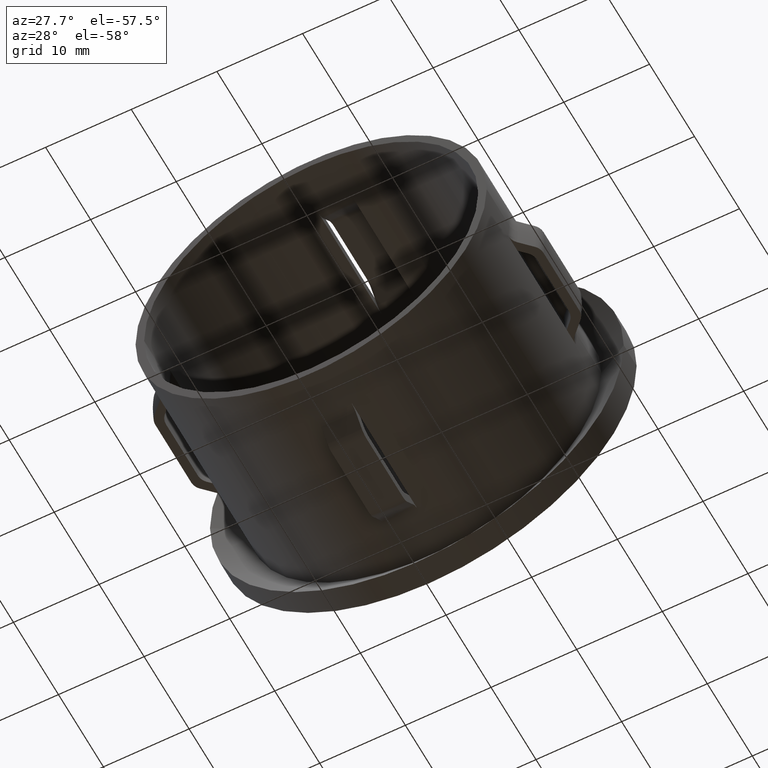
[diagram: clean part render]
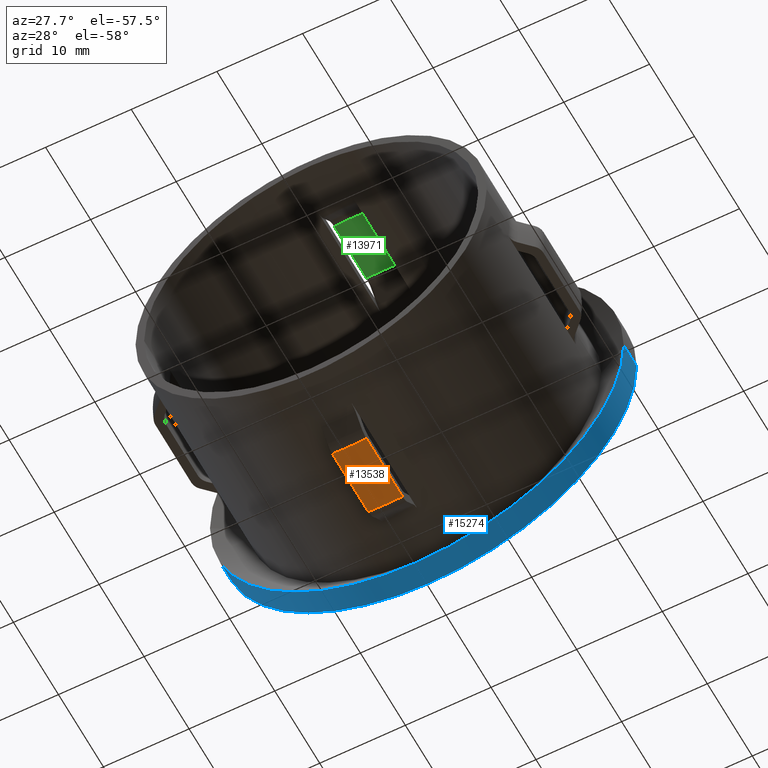
[diagram: same view with three faces highlighted in distinct colors, each labeled with its STEP entity id]
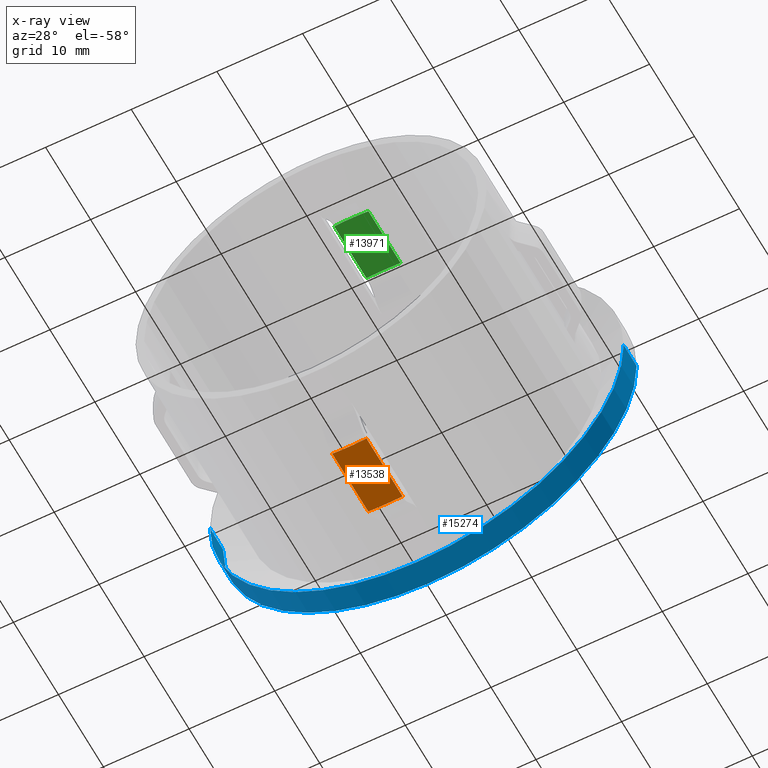
[diagram: x-ray of the same camera — body ghosted, the three highlighted faces saturated]
A machine part, auxiliary view with three faces highlighted in distinct colors.
The next image is the same camera in x-ray (body ghosted, the three faces saturated) — at least one of them is partly hidden behind the body in this view.
Their STEP definitions:

[orange] entity #13538 — the highlighted cylindrical surface (partial cylindrical patch) has radius 22.75 mm, axis along (-0, -1, -0).
#708 = ORIENTED_EDGE ( 'NONE', *, *, #13850, .T. ) ;
#1042 = DIRECTION ( 'NONE',  ( 1.000000000000000000, -2.897560091741472400E-015, 0.0000000000000000000 ) ) ;
#1842 = ORIENTED_EDGE ( 'NONE', *, *, #8058, .F. ) ;
#2649 = CIRCLE ( 'NONE', #16215, 22.75000000000006000 ) ;
#2795 = CARTESIAN_POINT ( 'NONE',  ( 2.000000000000002700, 20.00000000000000000, -22.66191739460727200 ) ) ;
#2892 = CARTESIAN_POINT ( 'NONE',  ( -1.999999999999997100, 20.00000000000000000, -22.66191739460728600 ) ) ;
#3248 = CARTESIAN_POINT ( 'NONE',  ( 0.0000000000000000000, 30.10000000000000100, 0.0000000000000000000 ) ) ;
#3481 = VECTOR ( 'NONE', #15312, 1000.000000000000000 ) ;
#4722 = LINE ( 'NONE', #2795, #16508 ) ;
#4914 = VERTEX_POINT ( 'NONE', #5137 ) ;
#4971 = DIRECTION ( 'NONE',  ( -2.904862207577519400E-015, -1.000000000000000000, -0.0000000000000000000 ) ) ;
#5137 = CARTESIAN_POINT ( 'NONE',  ( -1.999999999999997300, 8.507359312880781800, -22.66191739460728600 ) ) ;
#5251 = VERTEX_POINT ( 'NONE', #13236 ) ;
#6612 = DIRECTION ( 'NONE',  ( -2.449293598294745400E-017, -1.000000000000000000, -0.0000000000000000000 ) ) ;
#6787 = CARTESIAN_POINT ( 'NONE',  ( 2.000000000000002700, 16.50735931288072000, -22.66191739460727200 ) ) ;
#7039 = CARTESIAN_POINT ( 'NONE',  ( -3.948474823319314900E-014, 16.50735931288078400, 0.0000000000000000000 ) ) ;
#7125 = DIRECTION ( 'NONE',  ( 1.000000000000000000, -2.897560091741473600E-015, 0.0000000000000000000 ) ) ;
#7164 = ORIENTED_EDGE ( 'NONE', *, *, #14776, .T. ) ;
#7397 = CARTESIAN_POINT ( 'NONE',  ( -1.999999999999997100, 16.50735931288072000, -22.66191739460728600 ) ) ;
#7982 = AXIS2_PLACEMENT_3D ( 'NONE', #3248, #16383, #7125 ) ;
#8058 = EDGE_CURVE ( 'NONE', #4914, #5251, #2649, .T. ) ;
#8813 = ORIENTED_EDGE ( 'NONE', *, *, #13176, .F. ) ;
#9596 = DIRECTION ( 'NONE',  ( 1.000000000000000000, -2.897560091741474800E-015, 0.0000000000000000000 ) ) ;
#11536 = CIRCLE ( 'NONE', #16838, 22.75000000000003900 ) ;
#11993 = EDGE_LOOP ( 'NONE', ( #1842, #8813, #7164, #708 ) ) ;
#12205 = DIRECTION ( 'NONE',  ( -2.904862207577519400E-015, -1.000000000000000000, -0.0000000000000000000 ) ) ;
#12693 = CARTESIAN_POINT ( 'NONE',  ( -6.272364589381328600E-014, 8.507359312880787200, 0.0000000000000000000 ) ) ;
#12798 = FACE_OUTER_BOUND ( 'NONE', #11993, .T. ) ;
#13176 = EDGE_CURVE ( 'NONE', #15128, #4914, #14464, .T. ) ;
#13236 = CARTESIAN_POINT ( 'NONE',  ( 2.000000000000002200, 8.507359312880781800, -22.66191739460727200 ) ) ;
#13538 = ADVANCED_FACE ( 'NONE', ( #12798 ), #15273, .T. ) ;
#13850 = EDGE_CURVE ( 'NONE', #17016, #5251, #4722, .T. ) ;
#14464 = LINE ( 'NONE', #2892, #3481 ) ;
#14776 = EDGE_CURVE ( 'NONE', #15128, #17016, #11536, .T. ) ;
#15128 = VERTEX_POINT ( 'NONE', #7397 ) ;
#15273 = CYLINDRICAL_SURFACE ( 'NONE', #7982, 22.75000000000005000 ) ;
#15312 = DIRECTION ( 'NONE',  ( -2.449293598294745400E-017, -1.000000000000000000, -0.0000000000000000000 ) ) ;
#16215 = AXIS2_PLACEMENT_3D ( 'NONE', #12693, #4971, #1042 ) ;
#16383 = DIRECTION ( 'NONE',  ( -2.904862207577519400E-015, -1.000000000000000000, -0.0000000000000000000 ) ) ;
#16508 = VECTOR ( 'NONE', #6612, 1000.000000000000000 ) ;
#16838 = AXIS2_PLACEMENT_3D ( 'NONE', #7039, #12205, #9596 ) ;
#17016 = VERTEX_POINT ( 'NONE', #6787 ) ;

[blue] entity #15274 — the highlighted cylindrical surface (partial cylindrical patch) has radius 24.15 mm, axis along (-0, -1, -0).
#122 = EDGE_CURVE ( 'NONE', #8009, #13876, #13708, .T. ) ;
#1360 = CARTESIAN_POINT ( 'NONE',  ( 24.15000000000001600, 30.09999999999993400, 0.0000000000000000000 ) ) ;
#1661 = AXIS2_PLACEMENT_3D ( 'NONE', #3844, #5421, #14662 ) ;
#2683 = CARTESIAN_POINT ( 'NONE',  ( -24.14999999999991300, 23.50265883778230600, 2.957522019940861500E-015 ) ) ;
#3133 = VECTOR ( 'NONE', #7399, 1000.000000000000000 ) ;
#3445 = DIRECTION ( 'NONE',  ( -2.904862207577519400E-015, -1.000000000000000000, -0.0000000000000000000 ) ) ;
#3730 = FACE_OUTER_BOUND ( 'NONE', #9591, .T. ) ;
#3844 = CARTESIAN_POINT ( 'NONE',  ( -1.916436701262193500E-014, 23.50265883778223500, 0.0000000000000000000 ) ) ;
#3938 = CARTESIAN_POINT ( 'NONE',  ( -24.14999999999989200, 26.38101757611410700, 2.957522019940859500E-015 ) ) ;
#4032 = VERTEX_POINT ( 'NONE', #6105 ) ;
#4160 = VECTOR ( 'NONE', #11986, 1000.000000000000000 ) ;
#5421 = DIRECTION ( 'NONE',  ( -2.904862207577519400E-015, -1.000000000000000000, -0.0000000000000000000 ) ) ;
#6105 = CARTESIAN_POINT ( 'NONE',  ( 24.15000000000000600, 23.50265883778216700, 0.0000000000000000000 ) ) ;
#6186 = CARTESIAN_POINT ( 'NONE',  ( 24.15000000000000200, 26.38101757611396900, 0.0000000000000000000 ) ) ;
#6234 = CARTESIAN_POINT ( 'NONE',  ( -1.080313149379137300E-014, 26.38101757611403600, 0.0000000000000000000 ) ) ;
#7200 = AXIS2_PLACEMENT_3D ( 'NONE', #10073, #13141, #17133 ) ;
#7231 = LINE ( 'NONE', #1360, #4160 ) ;
#7399 = DIRECTION ( 'NONE',  ( -2.904862207577519400E-015, -1.000000000000000000, -0.0000000000000000000 ) ) ;
#7562 = DIRECTION ( 'NONE',  ( 1.000000000000000000, -2.873247993336325000E-015, 0.0000000000000000000 ) ) ;
#7862 = CYLINDRICAL_SURFACE ( 'NONE', #7200, 24.15000000000001600 ) ;
#8009 = VERTEX_POINT ( 'NONE', #3938 ) ;
#9063 = VERTEX_POINT ( 'NONE', #6186 ) ;
#9591 = EDGE_LOOP ( 'NONE', ( #11087, #16829, #15364, #10652 ) ) ;
#10073 = CARTESIAN_POINT ( 'NONE',  ( 0.0000000000000000000, 30.10000000000000100, 0.0000000000000000000 ) ) ;
#10652 = ORIENTED_EDGE ( 'NONE', *, *, #11568, .F. ) ;
#10923 = CIRCLE ( 'NONE', #12400, 24.15000000000001300 ) ;
#11087 = ORIENTED_EDGE ( 'NONE', *, *, #122, .F. ) ;
#11568 = EDGE_CURVE ( 'NONE', #13876, #4032, #13266, .T. ) ;
#11986 = DIRECTION ( 'NONE',  ( -2.904862207577519400E-015, -1.000000000000000000, -0.0000000000000000000 ) ) ;
#12400 = AXIS2_PLACEMENT_3D ( 'NONE', #6234, #3445, #7562 ) ;
#13141 = DIRECTION ( 'NONE',  ( -2.904862207577519400E-015, -1.000000000000000000, -0.0000000000000000000 ) ) ;
#13266 = CIRCLE ( 'NONE', #1661, 24.15000000000002000 ) ;
#13708 = LINE ( 'NONE', #16369, #3133 ) ;
#13876 = VERTEX_POINT ( 'NONE', #2683 ) ;
#14662 = DIRECTION ( 'NONE',  ( 1.000000000000000000, -2.873247993336324200E-015, 0.0000000000000000000 ) ) ;
#14977 = EDGE_CURVE ( 'NONE', #8009, #9063, #10923, .T. ) ;
#15274 = ADVANCED_FACE ( 'NONE', ( #3730 ), #7862, .T. ) ;
#15326 = EDGE_CURVE ( 'NONE', #9063, #4032, #7231, .T. ) ;
#15364 = ORIENTED_EDGE ( 'NONE', *, *, #15326, .T. ) ;
#16369 = CARTESIAN_POINT ( 'NONE',  ( -24.15000000000001600, 30.10000000000007200, 2.957522019940859900E-015 ) ) ;
#16829 = ORIENTED_EDGE ( 'NONE', *, *, #14977, .T. ) ;
#17133 = DIRECTION ( 'NONE',  ( 1.000000000000000000, -2.873247993336324600E-015, 0.0000000000000000000 ) ) ;

[green] entity #13971 — the highlighted cylindrical surface (partial cylindrical patch) has radius 21.75 mm, axis along (-0, -1, -0).
#513 = DIRECTION ( 'NONE',  ( -2.904862207577519400E-015, -1.000000000000000000, -0.0000000000000000000 ) ) ;
#535 = VERTEX_POINT ( 'NONE', #2549 ) ;
#698 = ORIENTED_EDGE ( 'NONE', *, *, #13231, .T. ) ;
#1030 = AXIS2_PLACEMENT_3D ( 'NONE', #3187, #513, #8574 ) ;
#1114 = EDGE_LOOP ( 'NONE', ( #698, #6081, #10434, #3494 ) ) ;
#1982 = LINE ( 'NONE', #14095, #14816 ) ;
#2274 = CIRCLE ( 'NONE', #1030, 21.75000000000003900 ) ;
#2549 = CARTESIAN_POINT ( 'NONE',  ( 2.000000000000002200, 16.09314575050768100, 21.65785077056358400 ) ) ;
#2915 = EDGE_CURVE ( 'NONE', #9643, #535, #7432, .T. ) ;
#2978 = EDGE_CURVE ( 'NONE', #535, #6806, #2274, .T. ) ;
#3187 = CARTESIAN_POINT ( 'NONE',  ( -4.068798155639680400E-014, 16.09314575050768800, 0.0000000000000000000 ) ) ;
#3494 = ORIENTED_EDGE ( 'NONE', *, *, #2915, .F. ) ;
#5009 = AXIS2_PLACEMENT_3D ( 'NONE', #9507, #13555, #10830 ) ;
#5876 = CARTESIAN_POINT ( 'NONE',  ( 2.000000000000002700, 30.10000000000000100, 21.65785077056359900 ) ) ;
#6022 = CARTESIAN_POINT ( 'NONE',  ( -1.999999999999997300, 16.09314575050769500, 21.65785077056359100 ) ) ;
#6081 = ORIENTED_EDGE ( 'NONE', *, *, #6421, .T. ) ;
#6421 = EDGE_CURVE ( 'NONE', #10695, #6806, #1982, .T. ) ;
#6806 = VERTEX_POINT ( 'NONE', #6022 ) ;
#7432 = LINE ( 'NONE', #5876, #8460 ) ;
#7559 = DIRECTION ( 'NONE',  ( 1.000000000000000000, -2.871266442996086700E-015, 0.0000000000000000000 ) ) ;
#8460 = VECTOR ( 'NONE', #15139, 1000.000000000000000 ) ;
#8574 = DIRECTION ( 'NONE',  ( 1.000000000000000000, -2.871266442996089400E-015, 0.0000000000000000000 ) ) ;
#8645 = CYLINDRICAL_SURFACE ( 'NONE', #5009, 21.75000000000005000 ) ;
#9006 = DIRECTION ( 'NONE',  ( -2.904862207577519400E-015, -1.000000000000000000, -0.0000000000000000000 ) ) ;
#9069 = FACE_OUTER_BOUND ( 'NONE', #1114, .T. ) ;
#9507 = CARTESIAN_POINT ( 'NONE',  ( 0.0000000000000000000, 30.10000000000000100, 0.0000000000000000000 ) ) ;
#9643 = VERTEX_POINT ( 'NONE', #13881 ) ;
#10158 = DIRECTION ( 'NONE',  ( 2.904862207577519400E-015, 1.000000000000000000, 0.0000000000000000000 ) ) ;
#10389 = CARTESIAN_POINT ( 'NONE',  ( -6.152041257060965000E-014, 8.921572875253879400, 0.0000000000000000000 ) ) ;
#10434 = ORIENTED_EDGE ( 'NONE', *, *, #2978, .F. ) ;
#10695 = VERTEX_POINT ( 'NONE', #16348 ) ;
#10830 = DIRECTION ( 'NONE',  ( 1.000000000000000000, -2.871266442996087900E-015, 0.0000000000000000000 ) ) ;
#10944 = CIRCLE ( 'NONE', #11860, 21.75000000000006000 ) ;
#11860 = AXIS2_PLACEMENT_3D ( 'NONE', #10389, #9006, #7559 ) ;
#13231 = EDGE_CURVE ( 'NONE', #9643, #10695, #10944, .T. ) ;
#13555 = DIRECTION ( 'NONE',  ( -2.904862207577519400E-015, -1.000000000000000000, -0.0000000000000000000 ) ) ;
#13881 = CARTESIAN_POINT ( 'NONE',  ( 1.999999999999941200, 8.921572875253817300, 21.65785077056359900 ) ) ;
#13971 = ADVANCED_FACE ( 'NONE', ( #9069 ), #8645, .F. ) ;
#14095 = CARTESIAN_POINT ( 'NONE',  ( -1.999999999999997100, 30.10000000000000100, 21.65785077056359900 ) ) ;
#14816 = VECTOR ( 'NONE', #10158, 1000.000000000000000 ) ;
#15139 = DIRECTION ( 'NONE',  ( 2.904862207577519400E-015, 1.000000000000000000, 0.0000000000000000000 ) ) ;
#16348 = CARTESIAN_POINT ( 'NONE',  ( -2.000000000000058600, 8.921572875253817300, 21.65785077056359900 ) ) ;